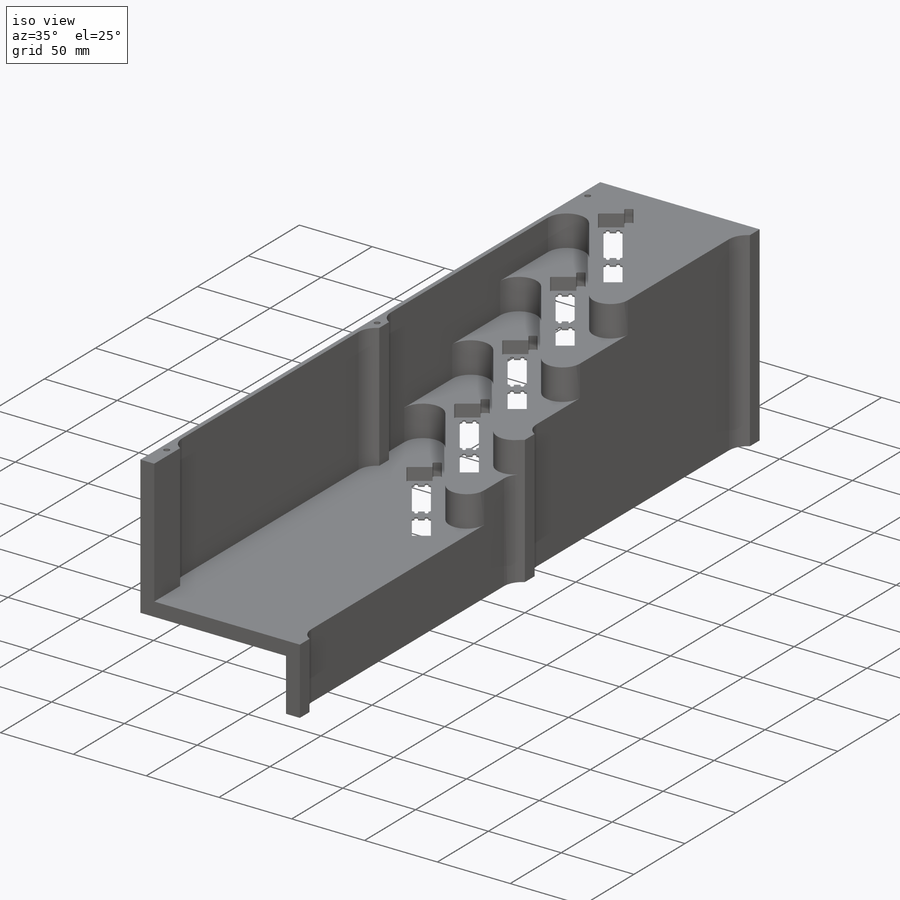
[diagram: iso view]
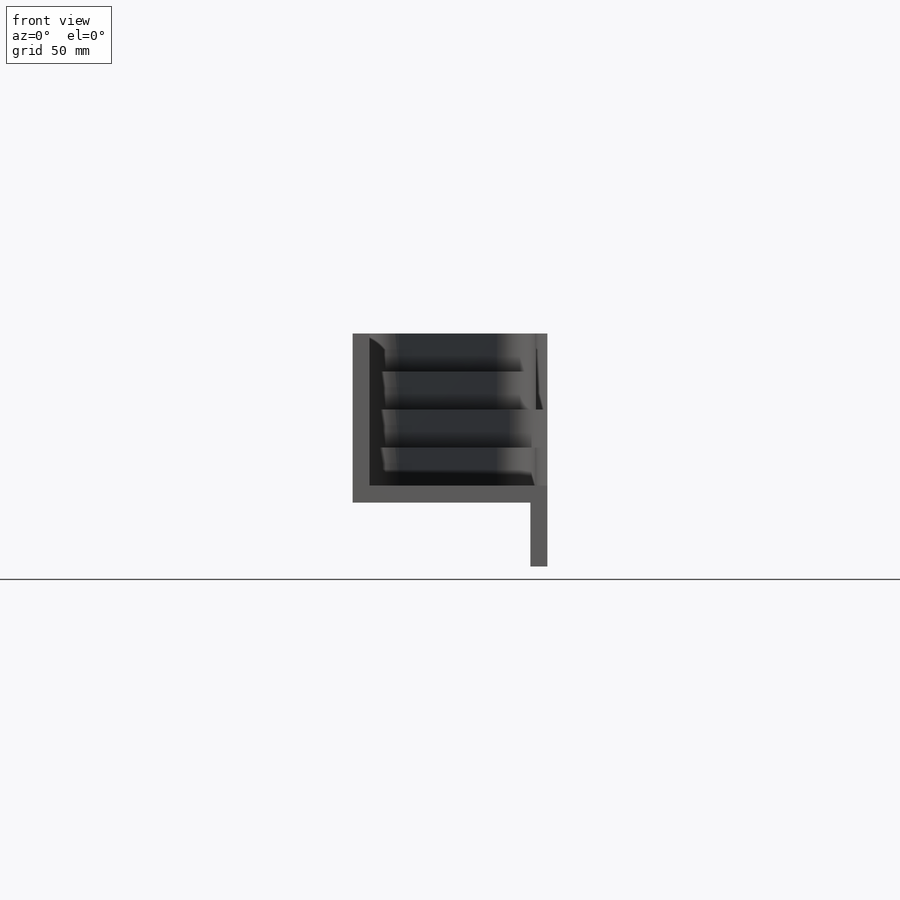
[diagram: front view]
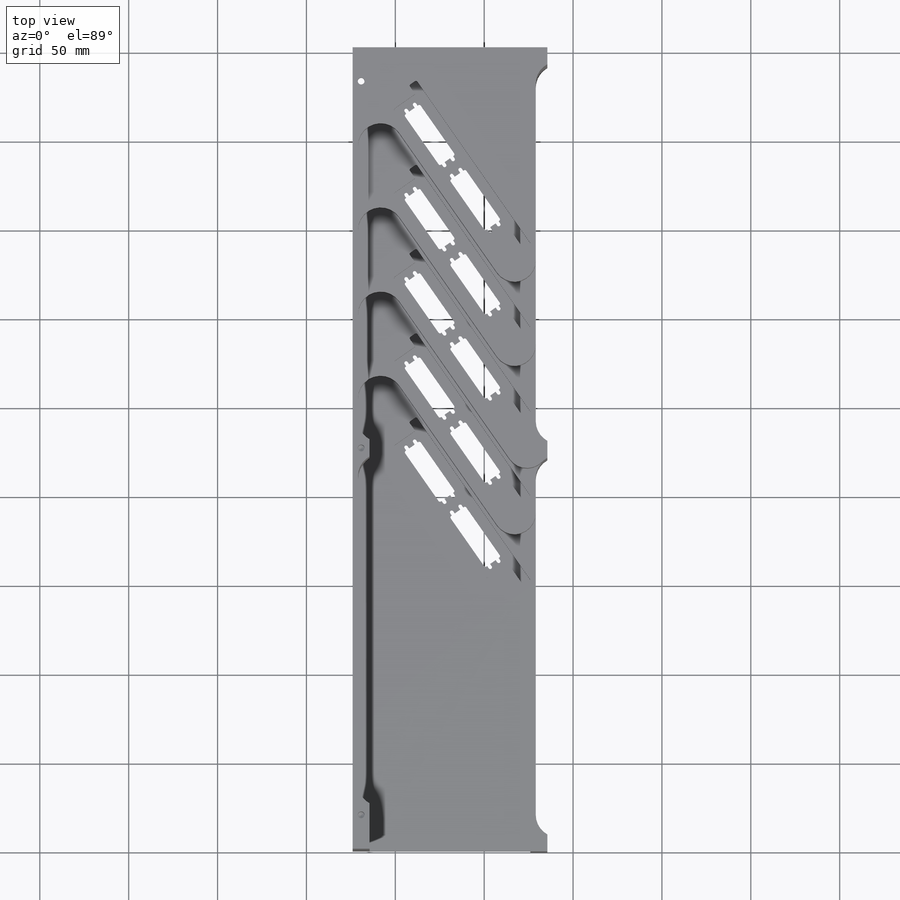
[diagram: top view]
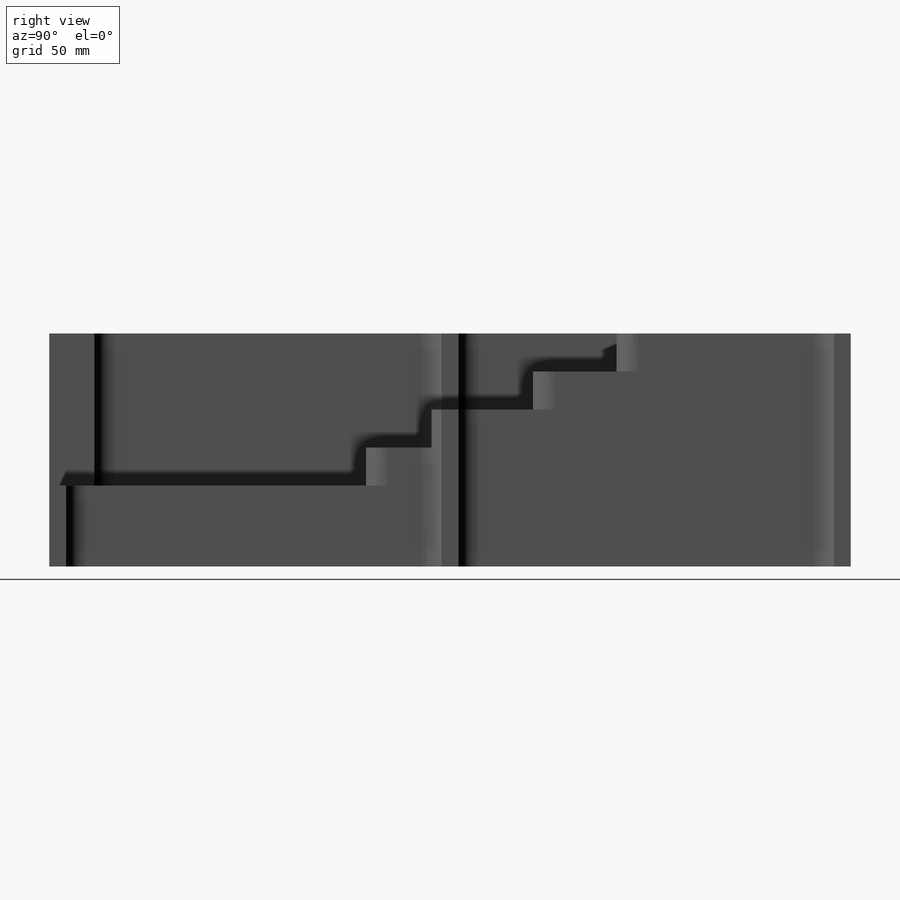
[diagram: right view]
SOLIDWORKS PART (.sldprt)
format: sldprt  version: not decoded by parser v0  size: 1,396,736 bytes
history: native  units: mm
features: sketch x21, cut_extrude x12, fillet x7, thread x6, extrude x4, pattern_linear x2, hole x2, material x1, plane x1 (+11 scaffold rows collapsed)
feature tree (67):
  scaffold x11  (default folders/planes/origin — collapsed)
  material  "6061-T6 (SS)"
  sketch  "Sketch1"  dims[D1=374.0mm D2=451.0mm D3=~163.403481mm D4=~291.851918mm]
  extrude  "Boss-Extrude1"  Depth=157.625mm
  sketch  "Sketch2"  dims[c1.D1=2.06mm c1.D2=~31.636795mm c2.D2=35.0deg c2.D3=5.84mm c2.D4=37.7mm c2.D5=1.41mm c2.D6=34.7mm]
  cut_extrude  "Cut-Extrude1"  [1 undecoded]
  fillet  "Fillet1"  Radius=1mm
  pattern_linear  "LPattern2"  Count1=2 Count2=1 Spacing1=44.7mm Spacing2=10mm
  pattern_linear  "LPattern1"  Count1=5 Count2=1 Spacing1=47mm Spacing2=10mm
  plane  "Plane1"
  sketch  "Sketch6"  dims[c1.D1=9.525mm c1.D2=21.3973mm c1.D3=~26.958093mm c1.D4=2.0mm c2.D1=9.525mm c2.D5=22.0mm c2.D6=9.525mm c3.D1=55.0mm]
  cut_extrude  "Cut-Extrude3"  Depth=500mm
  sketch  "all pockets"  dims[c1.D8=1.0mm c1.D1=~3.605801mm c2.D1=~125.561442deg c3.D1=4.0mm c3.D2=4.56mm c3.D3=4.56mm c3.D4=3.0mm c3.D5=3.0mm c3.D6=~4.987497mm c4.D6=145.0deg c5.D6=15.0mm c5.D7=6.0mm c5.D4=1.0mm c5.D1=1.0mm c5.D2=5.08mm c5.D3=6.0mm c6.D4=3.0mm c6.D5=4.56mm c6.D6=15.0mm c6.D7=4.56mm c6.D9=5.0]
  sketch  "Sketch8"
  cut_extrude  "Cut-Extrude5"  Depth=0.9mm
  sketch  "Sketch9"
  cut_extrude  "Cut-Extrude6"  Depth=0.9mm
  sketch  "Sketch10"
  cut_extrude  "Cut-Extrude7"  Depth=0.9mm
  sketch  "Sketch11"
  cut_extrude  "Cut-Extrude8"  Depth=0.9mm
  sketch  "Sketch12"
  cut_extrude  "Cut-Extrude9"  Depth=0.9mm
  sketch  "Sketch14"  dims[D1=100.0mm]
  extrude  "Boss-Extrude2"  [1 undecoded]
  sketch  "Sketch15"  dims[D1=300.0mm]
  cut_extrude  "Cut-Extrude11"  [1 undecoded]
  sketch  "Sketch16"  dims[c1.D1=9.525mm c1.D2=3.0mm c1.D3=40.0mm c2.D1=9.525mm c2.D4=9.525mm c3.D1=9.525mm]
  cut_extrude  "Cut-Extrude12"  Depth=9.525mm
  sketch  "Sketch21"  dims[D1=9.525mm]
  cut_extrude  "Cut-Extrude17"  [1 undecoded]
  fillet  "Fillet3"  Radius=12.7mm
  sketch  "Sketch22"  dims[D1=25.4mm D2=9.525mm D3=3.0mm]
  extrude  "Boss-Extrude3"  Depth=10mm
  fillet  "Fillet4"  Radius=12.7mm
  sketch  "Sketch23"  dims[D1=25.4mm]
  extrude  "Boss-Extrude5"  [1 undecoded]
  sketch  "Sketch24"
  cut_extrude  "Cut-Extrude18"  [1 undecoded]
  fillet  "Fillet5"  Radius=12.7mm
  sketch  "Sketch25"  dims[D1=9.525mm]
  cut_extrude  "Cut-Extrude19"  Depth=3mm
  fillet  "Fillet6"  Radius=12.7mm
  fillet  "Fillet7"  Radius=14.5mm
  hole  "#10-24 Tapped Hole1"  Diameter=3.7973mm Depth=18mm
  sketch  "Sketch27"  dims[D1=19.05mm]
  sketch  "Sketch26"  dims[hole-wizard template sketch: 47 standard entries collapsed; hole parameters kept: c15.Tap Drill Depth=18.0mm c15.D3=~14.816244mm c15.Drill Angle=118.0deg]
  thread  "Hole Thread1"  Diameter=9.525mm  [1 undecoded]
  thread  "Hole Thread2"  Diameter=9.525mm  [1 undecoded]
  thread  "Hole Thread3"  Diameter=9.525mm  [1 undecoded]
  hole  "#10-24 Tapped Hole2"  Diameter=3.7973mm Depth=18mm
  sketch  "Sketch29"
  sketch  "Sketch28"  dims[hole-wizard template sketch: 47 standard entries collapsed; hole parameters kept: c15.Tap Drill Depth=18.0mm c15.D3=~14.816244mm c15.Drill Angle=118.0deg]
  thread  "Hole Thread4"  Diameter=12.7mm  [1 undecoded]
  thread  "Hole Thread5"  Diameter=12.7mm  [1 undecoded]
  thread  "Hole Thread6"  Diameter=12.7mm  [1 undecoded]
  fillet  "Fillet8"  Radius=12mm
decode coverage: 41 of 54 modeling features carry decoded parameters
note: ~ marks probable driven/reference dimensions
note: 12 parameter values undecoded
summary: no parameter record found for 6 features
note: suppression state not decoded; provenance and decode notes live in map.json
